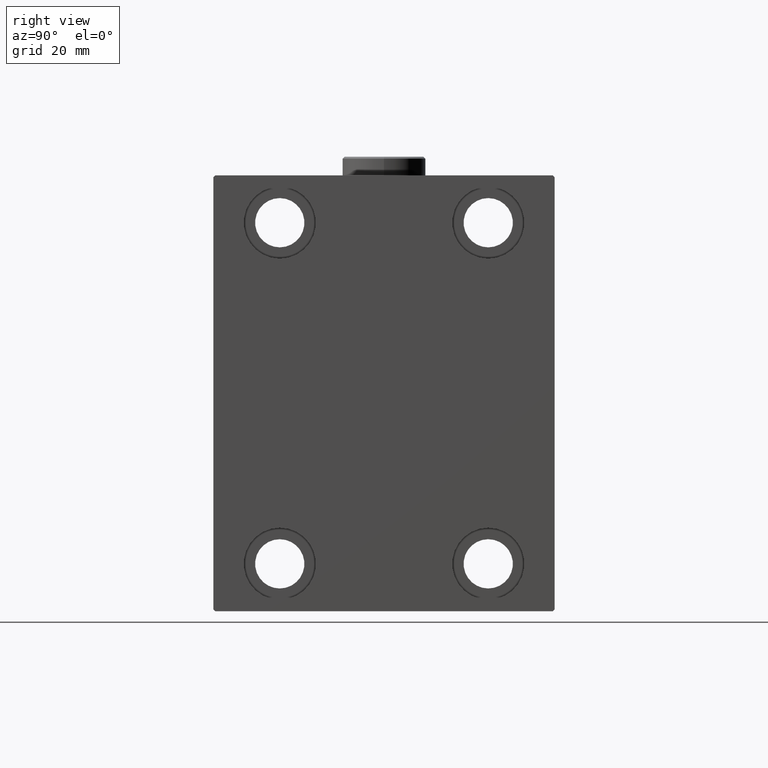
[diagram: clean part render]
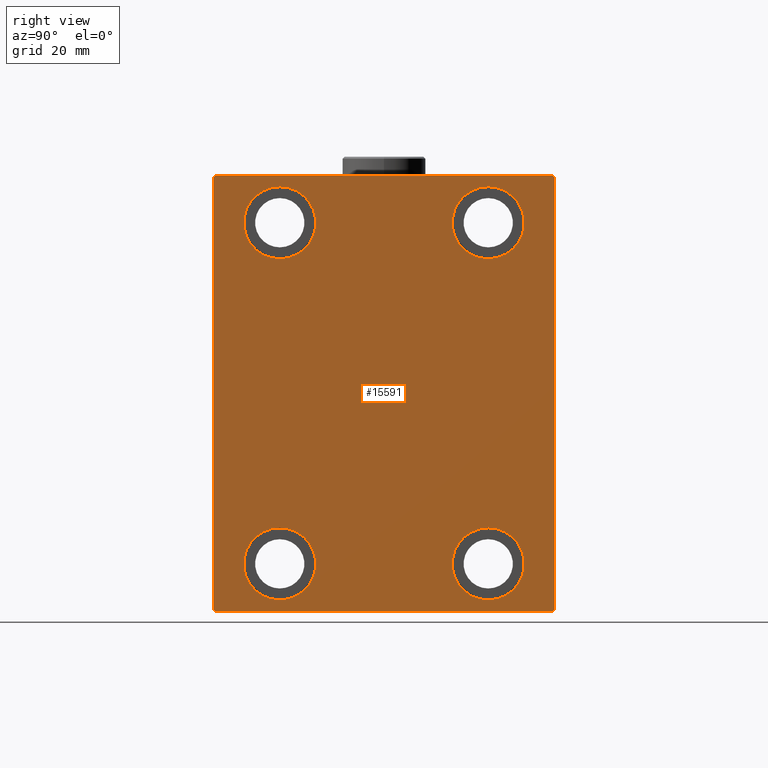
[diagram: same view with one face highlighted and labeled with its STEP entity id]
A machine part, right view. The second image highlights one B-rep face of the part: STEP entity #15591.
In plain terms, the highlighted planar face has unit normal (1, 0, 0).
Its self-contained STEP definition (entity closure, byte-faithful):
#693 = VECTOR ( 'NONE', #31342, 1000.000000000000114 ) ;
#1067 = AXIS2_PLACEMENT_3D ( 'NONE', #11607, #4956, #32701 ) ;
#1538 = VERTEX_POINT ( 'NONE', #12740 ) ;
#2121 = EDGE_CURVE ( 'NONE', #17046, #40336, #39107, .T. ) ;
#2370 = AXIS2_PLACEMENT_3D ( 'NONE', #27608, #13403, #20519 ) ;
#3102 = CIRCLE ( 'NONE', #17736, 9.500000000000001776 ) ;
#3262 = DIRECTION ( 'NONE',  ( 0.000000000000000000, -1.206764157201257045E-16, 1.000000000000000000 ) ) ;
#3689 = DIRECTION ( 'NONE',  ( -0.000000000000000000, 0.7071067811865474617, -0.7071067811865474617 ) ) ;
#3784 = ORIENTED_EDGE ( 'NONE', *, *, #27474, .T. ) ;
#4956 = DIRECTION ( 'NONE',  ( -1.000000000000000000, -0.000000000000000000, -0.000000000000000000 ) ) ;
#4962 = CIRCLE ( 'NONE', #26925, 9.500000000000001776 ) ;
#5550 = PLANE ( 'NONE',  #32474 ) ;
#6814 = LINE ( 'NONE', #13036, #693 ) ;
#7536 = EDGE_CURVE ( 'NONE', #40336, #27249, #28545, .T. ) ;
#7676 = DIRECTION ( 'NONE',  ( 0.000000000000000000, -1.000000000000000000, -1.541976423090495387E-16 ) ) ;
#8373 = EDGE_CURVE ( 'NONE', #18194, #1538, #25363, .T. ) ;
#8526 = EDGE_CURVE ( 'NONE', #28440, #41581, #3102, .T. ) ;
#8777 = DIRECTION ( 'NONE',  ( 0.000000000000000000, 0.000000000000000000, 1.000000000000000000 ) ) ;
#8927 = CARTESIAN_POINT ( 'NONE',  ( 108.0000000000000000, 45.00000000000000000, 57.00000000000000711 ) ) ;
#8963 = EDGE_CURVE ( 'NONE', #18816, #18194, #21133, .T. ) ;
#9089 = VECTOR ( 'NONE', #16770, 1000.000000000000000 ) ;
#9231 = CIRCLE ( 'NONE', #43656, 9.500000000000001776 ) ;
#9320 = EDGE_CURVE ( 'NONE', #41581, #28440, #12659, .T. ) ;
#10138 = CARTESIAN_POINT ( 'NONE',  ( 108.0000000000000000, 45.00000000000001421, -57.50000000000000711 ) ) ;
#10300 = AXIS2_PLACEMENT_3D ( 'NONE', #26212, #39492, #8777 ) ;
#10476 = FACE_BOUND ( 'NONE', #24890, .T. ) ;
#11123 = CARTESIAN_POINT ( 'NONE',  ( 108.0000000000000000, 27.49999999999998934, -44.99999999999998579 ) ) ;
#11607 = CARTESIAN_POINT ( 'NONE',  ( 108.0000000000000000, 27.50000000000001066, 45.00000000000000711 ) ) ;
#11760 = CIRCLE ( 'NONE', #10300, 9.500000000000001776 ) ;
#11889 = DIRECTION ( 'NONE',  ( 0.000000000000000000, 0.000000000000000000, 1.000000000000000000 ) ) ;
#12105 = EDGE_CURVE ( 'NONE', #21693, #18816, #27106, .T. ) ;
#12525 = CARTESIAN_POINT ( 'NONE',  ( 108.0000000000000000, -27.50000000000000000, -44.99999999999998579 ) ) ;
#12659 = CIRCLE ( 'NONE', #18518, 9.500000000000001776 ) ;
#12740 = CARTESIAN_POINT ( 'NONE',  ( 108.0000000000000000, 44.50000000000001421, -57.50000000000000711 ) ) ;
#12953 = AXIS2_PLACEMENT_3D ( 'NONE', #11123, #14558, #28092 ) ;
#13022 = VERTEX_POINT ( 'NONE', #42476 ) ;
#13036 = CARTESIAN_POINT ( 'NONE',  ( 108.0000000000000000, -51.00000000000000000, 51.00000000000000000 ) ) ;
#13206 = VERTEX_POINT ( 'NONE', #28682 ) ;
#13239 = DIRECTION ( 'NONE',  ( -0.000000000000000000, 0.7071067811865474617, 0.7071067811865474617 ) ) ;
#13334 = CARTESIAN_POINT ( 'NONE',  ( 108.0000000000000000, -27.50000000000000000, -54.49999999999998579 ) ) ;
#13403 = DIRECTION ( 'NONE',  ( -1.000000000000000000, -0.000000000000000000, -0.000000000000000000 ) ) ;
#13436 = CARTESIAN_POINT ( 'NONE',  ( 108.0000000000000000, 45.00000000000001421, -57.00000000000003553 ) ) ;
#13864 = EDGE_CURVE ( 'NONE', #24936, #20879, #44955, .T. ) ;
#13915 = ORIENTED_EDGE ( 'NONE', *, *, #19327, .T. ) ;
#14528 = CARTESIAN_POINT ( 'NONE',  ( 108.0000000000000000, -44.49999999999997158, 57.49999999999999289 ) ) ;
#14558 = DIRECTION ( 'NONE',  ( -1.000000000000000000, -0.000000000000000000, -0.000000000000000000 ) ) ;
#15101 = CARTESIAN_POINT ( 'NONE',  ( 108.0000000000000000, -27.50000000000000000, -44.99999999999998579 ) ) ;
#15591 = ADVANCED_FACE ( 'NONE', ( #10476, #26637, #19314, #45311, #20816 ), #5550, .T. ) ;
#16490 = ORIENTED_EDGE ( 'NONE', *, *, #13864, .T. ) ;
#16770 = DIRECTION ( 'NONE',  ( 0.000000000000000000, 0.000000000000000000, -1.000000000000000000 ) ) ;
#16821 = ORIENTED_EDGE ( 'NONE', *, *, #7536, .T. ) ;
#17046 = VERTEX_POINT ( 'NONE', #8927 ) ;
#17637 = CARTESIAN_POINT ( 'NONE',  ( 108.0000000000000000, -45.00000000000000000, 56.99999999999999289 ) ) ;
#17700 = CIRCLE ( 'NONE', #2370, 9.500000000000001776 ) ;
#17732 = ORIENTED_EDGE ( 'NONE', *, *, #12105, .T. ) ;
#17736 = AXIS2_PLACEMENT_3D ( 'NONE', #12525, #22612, #19857 ) ;
#17797 = CARTESIAN_POINT ( 'NONE',  ( 108.0000000000000000, 51.00000000000001421, 51.00000000000001421 ) ) ;
#18194 = VERTEX_POINT ( 'NONE', #27517 ) ;
#18518 = AXIS2_PLACEMENT_3D ( 'NONE', #15101, #33214, #11889 ) ;
#18816 = VERTEX_POINT ( 'NONE', #34560 ) ;
#19272 = ORIENTED_EDGE ( 'NONE', *, *, #2121, .T. ) ;
#19314 = FACE_BOUND ( 'NONE', #37794, .T. ) ;
#19327 = EDGE_CURVE ( 'NONE', #20879, #24936, #9231, .T. ) ;
#19857 = DIRECTION ( 'NONE',  ( 0.000000000000000000, 0.000000000000000000, 1.000000000000000000 ) ) ;
#20253 = DIRECTION ( 'NONE',  ( 0.000000000000000000, 0.000000000000000000, 1.000000000000000000 ) ) ;
#20519 = DIRECTION ( 'NONE',  ( 0.000000000000000000, 0.000000000000000000, 1.000000000000000000 ) ) ;
#20613 = VERTEX_POINT ( 'NONE', #13436 ) ;
#20637 = CARTESIAN_POINT ( 'NONE',  ( 108.0000000000000000, -27.49999999999998934, 54.50000000000000711 ) ) ;
#20816 = FACE_OUTER_BOUND ( 'NONE', #27966, .T. ) ;
#20879 = VERTEX_POINT ( 'NONE', #23279 ) ;
#21133 = LINE ( 'NONE', #39674, #25812 ) ;
#21184 = EDGE_LOOP ( 'NONE', ( #27600, #42345 ) ) ;
#21627 = VERTEX_POINT ( 'NONE', #20637 ) ;
#21693 = VERTEX_POINT ( 'NONE', #17637 ) ;
#22146 = CARTESIAN_POINT ( 'NONE',  ( 108.0000000000000000, 44.50000000000002842, 57.50000000000000711 ) ) ;
#22612 = DIRECTION ( 'NONE',  ( -1.000000000000000000, -0.000000000000000000, -0.000000000000000000 ) ) ;
#23200 = DIRECTION ( 'NONE',  ( 1.000000000000000000, 0.000000000000000000, 0.000000000000000000 ) ) ;
#23257 = EDGE_CURVE ( 'NONE', #20613, #17046, #31002, .T. ) ;
#23279 = CARTESIAN_POINT ( 'NONE',  ( 108.0000000000000000, 27.50000000000001066, 35.50000000000000711 ) ) ;
#23357 = CARTESIAN_POINT ( 'NONE',  ( 108.0000000000000000, 51.00000000000001421, -51.00000000000001421 ) ) ;
#23902 = DIRECTION ( 'NONE',  ( -1.000000000000000000, -0.000000000000000000, -0.000000000000000000 ) ) ;
#23998 = VECTOR ( 'NONE', #13239, 1000.000000000000114 ) ;
#24653 = CARTESIAN_POINT ( 'NONE',  ( 108.0000000000000000, 27.50000000000001066, 54.50000000000000711 ) ) ;
#24890 = EDGE_LOOP ( 'NONE', ( #42103, #41038 ) ) ;
#24905 = EDGE_CURVE ( 'NONE', #13206, #13022, #29814, .T. ) ;
#24936 = VERTEX_POINT ( 'NONE', #24653 ) ;
#25363 = LINE ( 'NONE', #39332, #33145 ) ;
#25812 = VECTOR ( 'NONE', #3689, 1000.000000000000114 ) ;
#26212 = CARTESIAN_POINT ( 'NONE',  ( 108.0000000000000000, -27.49999999999998934, 45.00000000000000711 ) ) ;
#26637 = FACE_BOUND ( 'NONE', #37239, .T. ) ;
#26925 = AXIS2_PLACEMENT_3D ( 'NONE', #41526, #23902, #20253 ) ;
#27106 = LINE ( 'NONE', #37635, #9089 ) ;
#27239 = VECTOR ( 'NONE', #7676, 1000.000000000000000 ) ;
#27249 = VERTEX_POINT ( 'NONE', #14528 ) ;
#27474 = EDGE_CURVE ( 'NONE', #1538, #20613, #44640, .T. ) ;
#27517 = CARTESIAN_POINT ( 'NONE',  ( 108.0000000000000000, -44.50000000000002842, -57.50000000000000711 ) ) ;
#27600 = ORIENTED_EDGE ( 'NONE', *, *, #9320, .T. ) ;
#27608 = CARTESIAN_POINT ( 'NONE',  ( 108.0000000000000000, -27.49999999999998934, 45.00000000000000711 ) ) ;
#27966 = EDGE_LOOP ( 'NONE', ( #16821, #38684, #17732, #29575, #35191, #3784, #28781, #19272 ) ) ;
#28092 = DIRECTION ( 'NONE',  ( 0.000000000000000000, 0.000000000000000000, 1.000000000000000000 ) ) ;
#28243 = EDGE_CURVE ( 'NONE', #13022, #13206, #4962, .T. ) ;
#28314 = CARTESIAN_POINT ( 'NONE',  ( 108.0000000000000000, 45.00000000000000000, 57.50000000000000711 ) ) ;
#28316 = VERTEX_POINT ( 'NONE', #30993 ) ;
#28440 = VERTEX_POINT ( 'NONE', #29385 ) ;
#28545 = LINE ( 'NONE', #28314, #27239 ) ;
#28579 = VECTOR ( 'NONE', #42780, 1000.000000000000114 ) ;
#28682 = CARTESIAN_POINT ( 'NONE',  ( 108.0000000000000000, 27.49999999999998934, -54.49999999999998579 ) ) ;
#28781 = ORIENTED_EDGE ( 'NONE', *, *, #23257, .T. ) ;
#29385 = CARTESIAN_POINT ( 'NONE',  ( 108.0000000000000000, -27.50000000000000000, -35.49999999999998579 ) ) ;
#29575 = ORIENTED_EDGE ( 'NONE', *, *, #8963, .T. ) ;
#29814 = CIRCLE ( 'NONE', #12953, 9.500000000000001776 ) ;
#30993 = CARTESIAN_POINT ( 'NONE',  ( 108.0000000000000000, -27.49999999999998934, 35.50000000000000711 ) ) ;
#31002 = LINE ( 'NONE', #10138, #40698 ) ;
#31342 = DIRECTION ( 'NONE',  ( 0.000000000000000000, -0.7071067811865474617, -0.7071067811865474617 ) ) ;
#32474 = AXIS2_PLACEMENT_3D ( 'NONE', #33285, #23200, #37172 ) ;
#32695 = DIRECTION ( 'NONE',  ( 0.000000000000000000, 1.000000000000000000, 0.000000000000000000 ) ) ;
#32701 = DIRECTION ( 'NONE',  ( 0.000000000000000000, 0.000000000000000000, 1.000000000000000000 ) ) ;
#33145 = VECTOR ( 'NONE', #32695, 1000.000000000000000 ) ;
#33214 = DIRECTION ( 'NONE',  ( -1.000000000000000000, -0.000000000000000000, -0.000000000000000000 ) ) ;
#33285 = CARTESIAN_POINT ( 'NONE',  ( 108.0000000000000000, 0.000000000000000000, 0.000000000000000000 ) ) ;
#33386 = ORIENTED_EDGE ( 'NONE', *, *, #44000, .T. ) ;
#34083 = ORIENTED_EDGE ( 'NONE', *, *, #39855, .T. ) ;
#34560 = CARTESIAN_POINT ( 'NONE',  ( 108.0000000000000000, -45.00000000000000000, -57.00000000000003553 ) ) ;
#34620 = DIRECTION ( 'NONE',  ( 0.000000000000000000, 0.000000000000000000, 1.000000000000000000 ) ) ;
#35191 = ORIENTED_EDGE ( 'NONE', *, *, #8373, .T. ) ;
#35306 = CARTESIAN_POINT ( 'NONE',  ( 108.0000000000000000, 27.50000000000001066, 45.00000000000000711 ) ) ;
#36597 = EDGE_CURVE ( 'NONE', #27249, #21693, #6814, .T. ) ;
#37172 = DIRECTION ( 'NONE',  ( 0.000000000000000000, 0.000000000000000000, -1.000000000000000000 ) ) ;
#37239 = EDGE_LOOP ( 'NONE', ( #33386, #34083 ) ) ;
#37635 = CARTESIAN_POINT ( 'NONE',  ( 108.0000000000000000, -45.00000000000000000, 57.49999999999999289 ) ) ;
#37794 = EDGE_LOOP ( 'NONE', ( #13915, #16490 ) ) ;
#38684 = ORIENTED_EDGE ( 'NONE', *, *, #36597, .T. ) ;
#39107 = LINE ( 'NONE', #17797, #28579 ) ;
#39332 = CARTESIAN_POINT ( 'NONE',  ( 108.0000000000000000, -45.00000000000000000, -57.50000000000000711 ) ) ;
#39492 = DIRECTION ( 'NONE',  ( -1.000000000000000000, -0.000000000000000000, -0.000000000000000000 ) ) ;
#39674 = CARTESIAN_POINT ( 'NONE',  ( 108.0000000000000000, -51.00000000000001421, -51.00000000000001421 ) ) ;
#39855 = EDGE_CURVE ( 'NONE', #21627, #28316, #11760, .T. ) ;
#40336 = VERTEX_POINT ( 'NONE', #22146 ) ;
#40698 = VECTOR ( 'NONE', #3262, 1000.000000000000000 ) ;
#41038 = ORIENTED_EDGE ( 'NONE', *, *, #28243, .T. ) ;
#41526 = CARTESIAN_POINT ( 'NONE',  ( 108.0000000000000000, 27.49999999999998934, -44.99999999999998579 ) ) ;
#41581 = VERTEX_POINT ( 'NONE', #13334 ) ;
#42103 = ORIENTED_EDGE ( 'NONE', *, *, #24905, .T. ) ;
#42165 = DIRECTION ( 'NONE',  ( -1.000000000000000000, -0.000000000000000000, -0.000000000000000000 ) ) ;
#42345 = ORIENTED_EDGE ( 'NONE', *, *, #8526, .T. ) ;
#42476 = CARTESIAN_POINT ( 'NONE',  ( 108.0000000000000000, 27.49999999999998934, -35.49999999999998579 ) ) ;
#42780 = DIRECTION ( 'NONE',  ( -0.000000000000000000, -0.7071067811865474617, 0.7071067811865474617 ) ) ;
#43656 = AXIS2_PLACEMENT_3D ( 'NONE', #35306, #42165, #34620 ) ;
#44000 = EDGE_CURVE ( 'NONE', #28316, #21627, #17700, .T. ) ;
#44640 = LINE ( 'NONE', #23357, #23998 ) ;
#44955 = CIRCLE ( 'NONE', #1067, 9.500000000000001776 ) ;
#45311 = FACE_BOUND ( 'NONE', #21184, .T. ) ;